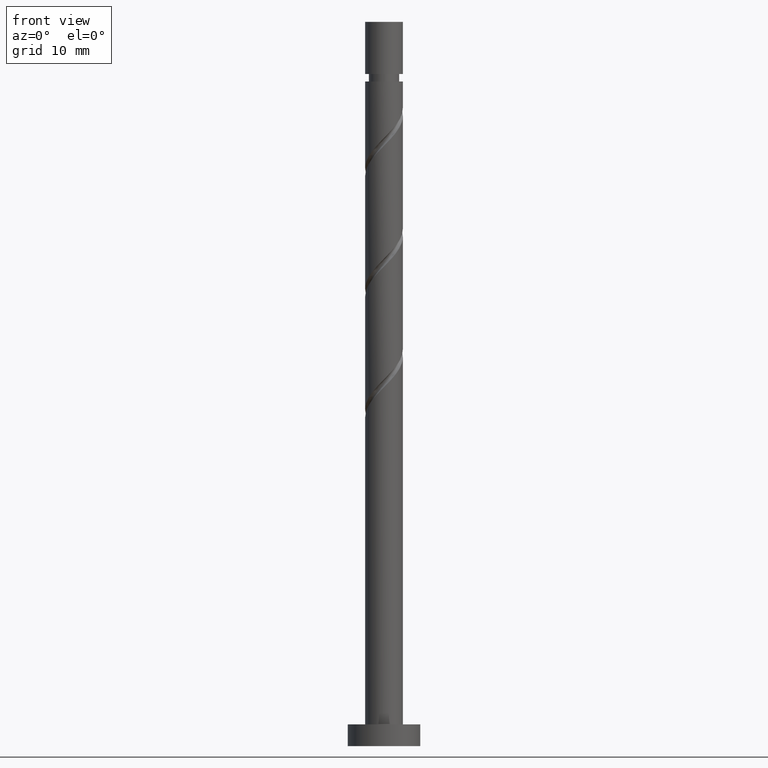
[diagram: clean part render]
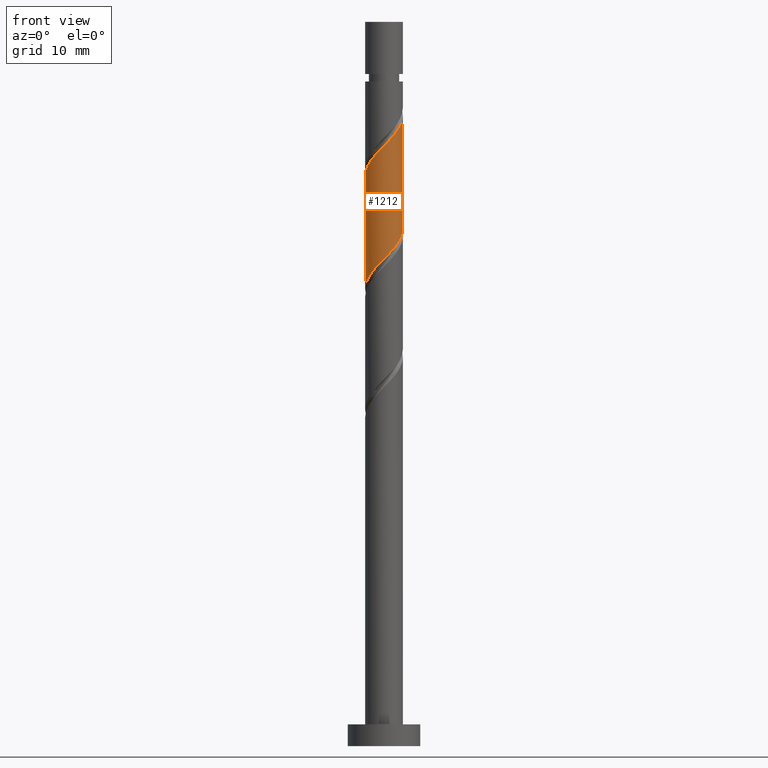
[diagram: same view with one face highlighted and labeled with its STEP entity id]
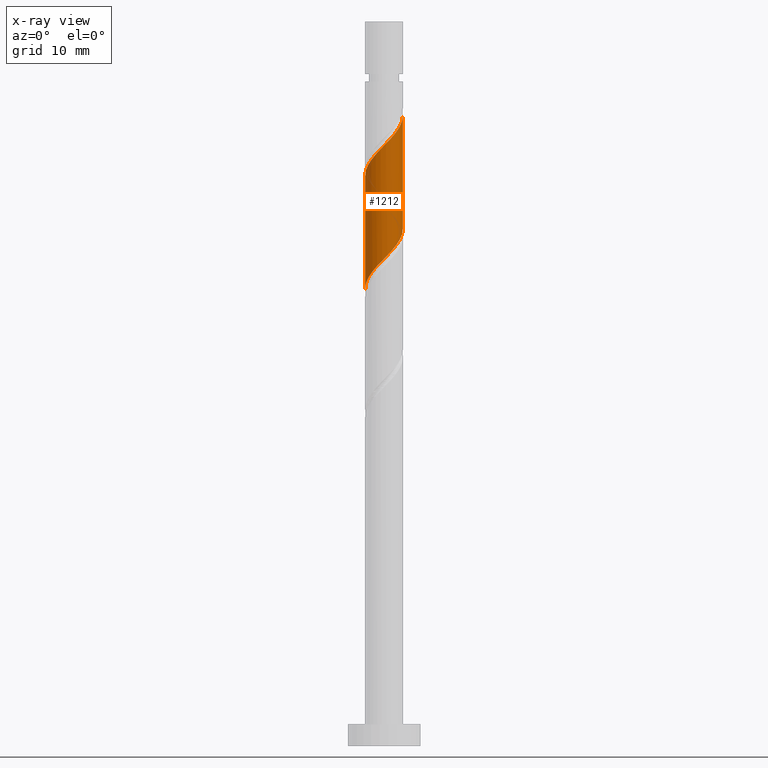
[diagram: x-ray of the same camera — body ghosted, the highlighted face saturated]
A machine part, front view. The second image highlights one B-rep face of the part: STEP entity #1212.
The next image is the same camera in x-ray: the body ghosted, the highlighted face saturated — about 0% of this face is hidden behind the body in this view.
In plain terms, the highlighted cylindrical surface (edge-blend (fillet) strip) has radius 2.6 mm, axis along (-0, -0, -1).
Its self-contained STEP definition (entity closure, byte-faithful):
#23 = CARTESIAN_POINT ( 'NONE',  ( 2.587307007084878929, -0.5253750955076286200, 70.93010299523211870 ) ) ;
#47 = CARTESIAN_POINT ( 'NONE',  ( -0.06811232045027364179, -2.639230427926490208, 67.22639929152840921 ) ) ;
#57 = CARTESIAN_POINT ( 'NONE',  ( -2.465329462490470913, -0.8259241135700340353, 63.98565855078765452 ) ) ;
#81 = ORIENTED_EDGE ( 'NONE', *, *, #1074, .F. ) ;
#83 = CARTESIAN_POINT ( 'NONE',  ( -2.251584436800081690, -1.378602213783888919, 80.18936225449138533 ) ) ;
#147 = CARTESIAN_POINT ( 'NONE',  ( 2.599134587407734287, -0.06707754125508152976, 71.39306595819508061 ) ) ;
#154 = CARTESIAN_POINT ( 'NONE',  ( -0.5173934672954416669, -2.548000000000000043, 66.76343632856543309 ) ) ;
#162 = ORIENTED_EDGE ( 'NONE', *, *, #850, .F. ) ;
#164 = DIRECTION ( 'NONE',  ( -0.000000000000000000, -0.000000000000000000, -1.000000000000000000 ) ) ;
#189 = CARTESIAN_POINT ( 'NONE',  ( 1.357658148454166991, -2.217377809922346010, 84.35602892115805673 ) ) ;
#255 =( BOUNDED_CURVE ( )  B_SPLINE_CURVE ( 2, ( #1268, #786, #147, #23, #678, #1129, #1376, #479, #969, #267, #716, #47, #154, #600, #1044, #378, #1430, #286, #57, #843, #933 ),
 .UNSPECIFIED., .F., .T. ) 
 B_SPLINE_CURVE_WITH_KNOTS ( ( 3, 2, 2, 2, 2, 2, 2, 2, 2, 2, 3 ),
 ( 0.5545248053855289516, 0.5555555555555555802, 0.5694444444444444198, 0.5833333333333333703, 0.5972222222222222099, 0.6111111111111111605, 0.6250000000000000000, 0.6388888888888888395, 0.6527777777777777901, 0.6666666666666666297, 0.6795248053855289516 ),
 .UNSPECIFIED. ) 
 CURVE ( )  GEOMETRIC_REPRESENTATION_ITEM ( )  RATIONAL_B_SPLINE_CURVE ( ( 0.9071930855141208117, 0.9080659294509685342, 0.9090909090909087276, 0.8952797754656430795, 0.9090909090909087276, 0.8952797754656430795, 0.9090909090909087276, 0.8952797754656430795, 0.9090909090909087276, 0.8952797754656430795, 0.9090909090909087276, 0.8952797754656430795, 0.9090909090909087276, 0.8952797754656430795, 0.9090909090909087276, 0.8952797754656430795, 0.9090909090909087276, 0.8952797754656430795, 0.9090909090909087276, 0.8963047551055832729, 0.9071930855141208117 ) ) 
 REPRESENTATION_ITEM ( '' )  );
#264 = CARTESIAN_POINT ( 'NONE',  ( -2.600000000000000089, 0.000000000000000000, 100.0000000000000000 ) ) ;
#267 = CARTESIAN_POINT ( 'NONE',  ( 0.8386653243171569017, -2.503361143278804768, 68.15232521745434724 ) ) ;
#282 = CARTESIAN_POINT ( 'NONE',  ( -2.600000000000000533, -2.222171273850450732E-15, 63.12762455022087948 ) ) ;
#286 = CARTESIAN_POINT ( 'NONE',  ( -2.319696757250350849, -1.260628214142602843, 64.44862151375062354 ) ) ;
#288 = CARTESIAN_POINT ( 'NONE',  ( -0.8386653243171585670, -2.503361143278806988, 82.04121410634321876 ) ) ;
#297 = VECTOR ( 'NONE', #164, 1000.000000000000000 ) ;
#298 = CARTESIAN_POINT ( 'NONE',  ( 2.600000000000002309, -0.4239413667331946578, 86.63599526121106464 ) ) ;
#305 =( BOUNDED_CURVE ( )  B_SPLINE_CURVE ( 2, ( #847, #1223, #1426, #1103, #546, #83, #406, #1453, #435, #288, #1076, #539, #1082, #1339, #189, #320, #734, #863, #1316, #298, #741 ),
 .UNSPECIFIED., .F., .T. ) 
 B_SPLINE_CURVE_WITH_KNOTS ( ( 3, 2, 2, 2, 2, 2, 2, 2, 2, 2, 3 ),
 ( 0.5545248053855295067, 0.5555555555555555802, 0.5694444444444444198, 0.5833333333333332593, 0.5972222222222222099, 0.6111111111111111605, 0.6250000000000000000, 0.6388888888888888395, 0.6527777777777777901, 0.6666666666666667407, 0.6795248053855289516 ),
 .UNSPECIFIED. ) 
 CURVE ( )  GEOMETRIC_REPRESENTATION_ITEM ( )  RATIONAL_B_SPLINE_CURVE ( ( 0.9071930855141258077, 0.9080659294509731971, 0.9090909090909128354, 0.8952797754656471874, 0.9090909090909128354, 0.8952797754656471874, 0.9090909090909128354, 0.8952797754656471874, 0.9090909090909128354, 0.8952797754656471874, 0.9090909090909128354, 0.8952797754656471874, 0.9090909090909128354, 0.8952797754656471874, 0.9090909090909128354, 0.8952797754656471874, 0.9090909090909128354, 0.8952797754656471874, 0.9090909090909128354, 0.8963047551055873807, 0.9071930855141249195 ) ) 
 REPRESENTATION_ITEM ( '' )  );
#320 = CARTESIAN_POINT ( 'NONE',  ( 1.748641682767722250, -1.977986047771178590, 84.81899188412099022 ) ) ;
#371 = VECTOR ( 'NONE', #1413, 1000.000000000000000 ) ;
#378 = CARTESIAN_POINT ( 'NONE',  ( -1.748641682767721139, -1.977986047771176148, 65.37454743967656157 ) ) ;
#406 = CARTESIAN_POINT ( 'NONE',  ( -1.947935995195031467, -1.722075886429966562, 80.65232521745433303 ) ) ;
#411 = CARTESIAN_POINT ( 'NONE',  ( 2.600000000000000533, 1.172708873931162187E-15, 71.46095788355421519 ) ) ;
#435 = CARTESIAN_POINT ( 'NONE',  ( -1.241476438953570405, -2.284455351177426596, 81.57825114338024264 ) ) ;
#479 = CARTESIAN_POINT ( 'NONE',  ( 1.644287553589979689, -2.065549559076044872, 69.07825114338025685 ) ) ;
#504 = CARTESIAN_POINT ( 'NONE',  ( -2.600000000000001865, -5.714154704186846235E-16, 78.73258144024336502 ) ) ;
#533 = EDGE_CURVE ( 'NONE', #553, #536, #1057, .T. ) ;
#536 = VERTEX_POINT ( 'NONE', #282 ) ;
#539 = CARTESIAN_POINT ( 'NONE',  ( 0.06811232045027157400, -2.639230427926491984, 82.96714003226915679 ) ) ;
#546 = CARTESIAN_POINT ( 'NONE',  ( -2.419445721942480976, -0.9519886546457582144, 79.72639929152839500 ) ) ;
#553 = VERTEX_POINT ( 'NONE', #504 ) ;
#594 = VERTEX_POINT ( 'NONE', #616 ) ;
#600 = CARTESIAN_POINT ( 'NONE',  ( -0.9666746141406113990, -2.456769572073511210, 66.30047336560247118 ) ) ;
#609 = AXIS2_PLACEMENT_3D ( 'NONE', #1261, #918, #1269 ) ;
#616 = CARTESIAN_POINT ( 'NONE',  ( 2.600000000000001865, 5.676807287819611469E-16, 87.06591477357666520 ) ) ;
#669 = EDGE_CURVE ( 'NONE', #594, #1034, #948, .T. ) ;
#678 = CARTESIAN_POINT ( 'NONE',  ( 2.419445721942477423, -0.9519886546457575482, 70.46714003226914258 ) ) ;
#687 = EDGE_LOOP ( 'NONE', ( #817, #81, #1062, #162 ) ) ;
#716 = CARTESIAN_POINT ( 'NONE',  ( 0.3852765019334422059, -2.571295785602646156, 67.68936225449137112 ) ) ;
#734 = CARTESIAN_POINT ( 'NONE',  ( 2.034169220009037549, -1.619307130956890495, 85.28195484708398055 ) ) ;
#741 = CARTESIAN_POINT ( 'NONE',  ( 2.600000000000001865, 5.676807287819611469E-16, 87.06591477357666520 ) ) ;
#786 = CARTESIAN_POINT ( 'NONE',  ( 2.600000000000000089, -0.03354435326325068412, 71.42694050962184349 ) ) ;
#807 = CYLINDRICAL_SURFACE ( 'NONE', #609, 2.600000000000000089 ) ;
#817 = ORIENTED_EDGE ( 'NONE', *, *, #669, .F. ) ;
#843 = CARTESIAN_POINT ( 'NONE',  ( -2.599999999999999201, -0.4239413667331917712, 63.55754406258650135 ) ) ;
#847 = CARTESIAN_POINT ( 'NONE',  ( -2.600000000000001865, -5.714154704186846235E-16, 78.73258144024336502 ) ) ;
#850 = EDGE_CURVE ( 'NONE', #1034, #536, #255, .T. ) ;
#863 = CARTESIAN_POINT ( 'NONE',  ( 2.319696757250354402, -1.260628214142604175, 85.74491781004691404 ) ) ;
#918 = DIRECTION ( 'NONE',  ( -0.000000000000000000, -0.000000000000000000, -1.000000000000000000 ) ) ;
#933 = CARTESIAN_POINT ( 'NONE',  ( -2.600000000000000533, -2.222171273850450732E-15, 63.12762455022087948 ) ) ;
#948 = LINE ( 'NONE', #1180, #297 ) ;
#969 = CARTESIAN_POINT ( 'NONE',  ( 1.241476438953568628, -2.284455351177423932, 68.61528818041726652 ) ) ;
#1034 = VERTEX_POINT ( 'NONE', #411 ) ;
#1044 = CARTESIAN_POINT ( 'NONE',  ( -1.357658148454165881, -2.217377809922343346, 65.83751040263953769 ) ) ;
#1057 = LINE ( 'NONE', #264, #371 ) ;
#1062 = ORIENTED_EDGE ( 'NONE', *, *, #533, .T. ) ;
#1074 = EDGE_CURVE ( 'NONE', #553, #594, #305, .T. ) ;
#1076 = CARTESIAN_POINT ( 'NONE',  ( -0.3852765019334435381, -2.571295785602649264, 82.50417706930616646 ) ) ;
#1082 = CARTESIAN_POINT ( 'NONE',  ( 0.5173934672954414449, -2.548000000000003151, 83.43010299523209028 ) ) ;
#1103 = CARTESIAN_POINT ( 'NONE',  ( -2.587307007084881594, -0.5253750955076283979, 79.26343632856546151 ) ) ;
#1129 = CARTESIAN_POINT ( 'NONE',  ( 2.251584436800078581, -1.378602213783889141, 70.00417706930618067 ) ) ;
#1146 = FACE_OUTER_BOUND ( 'NONE', #687, .T. ) ;
#1180 = CARTESIAN_POINT ( 'NONE',  ( 2.600000000000000089, 3.184081677783117698E-16, 100.0000000000000000 ) ) ;
#1212 = ADVANCED_FACE ( 'NONE', ( #1146 ), #807, .T. ) ;
#1223 = CARTESIAN_POINT ( 'NONE',  ( -2.600000000000000977, -0.03354435326326700439, 78.76659881417572251 ) ) ;
#1261 = CARTESIAN_POINT ( 'NONE',  ( 0.000000000000000000, 0.000000000000000000, 100.0000000000000000 ) ) ;
#1268 = CARTESIAN_POINT ( 'NONE',  ( 2.600000000000000533, 1.172708873931162187E-15, 71.46095788355421519 ) ) ;
#1269 = DIRECTION ( 'NONE',  ( -1.000000000000000000, 0.000000000000000000, 0.000000000000000000 ) ) ;
#1316 = CARTESIAN_POINT ( 'NONE',  ( 2.465329462490473578, -0.8259241135700370329, 86.20788077300990437 ) ) ;
#1339 = CARTESIAN_POINT ( 'NONE',  ( 0.9666746141406103998, -2.456769572073514762, 83.89306595819508061 ) ) ;
#1376 = CARTESIAN_POINT ( 'NONE',  ( 1.947935995195028580, -1.722075886429966785, 69.54121410634321876 ) ) ;
#1413 = DIRECTION ( 'NONE',  ( -0.000000000000000000, -0.000000000000000000, -1.000000000000000000 ) ) ;
#1426 = CARTESIAN_POINT ( 'NONE',  ( -2.599134587407736507, -0.06707754125508011422, 78.80047336560247118 ) ) ;
#1430 = CARTESIAN_POINT ( 'NONE',  ( -2.034169220009036216, -1.619307130956888274, 64.91158447671359966 ) ) ;
#1453 = CARTESIAN_POINT ( 'NONE',  ( -1.644287553589981909, -2.065549559076046648, 81.11528818041730915 ) ) ;